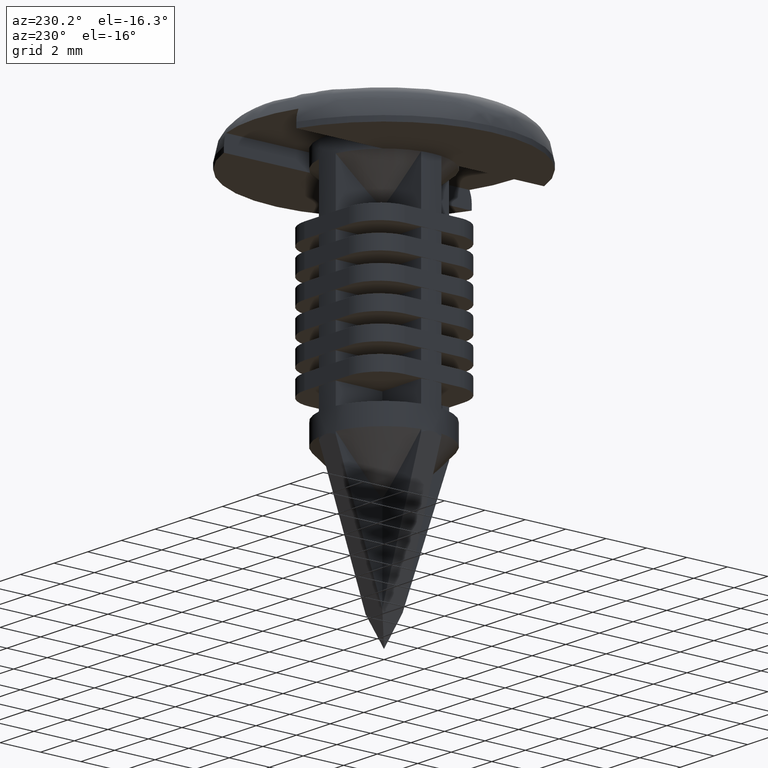
[diagram: clean part render]
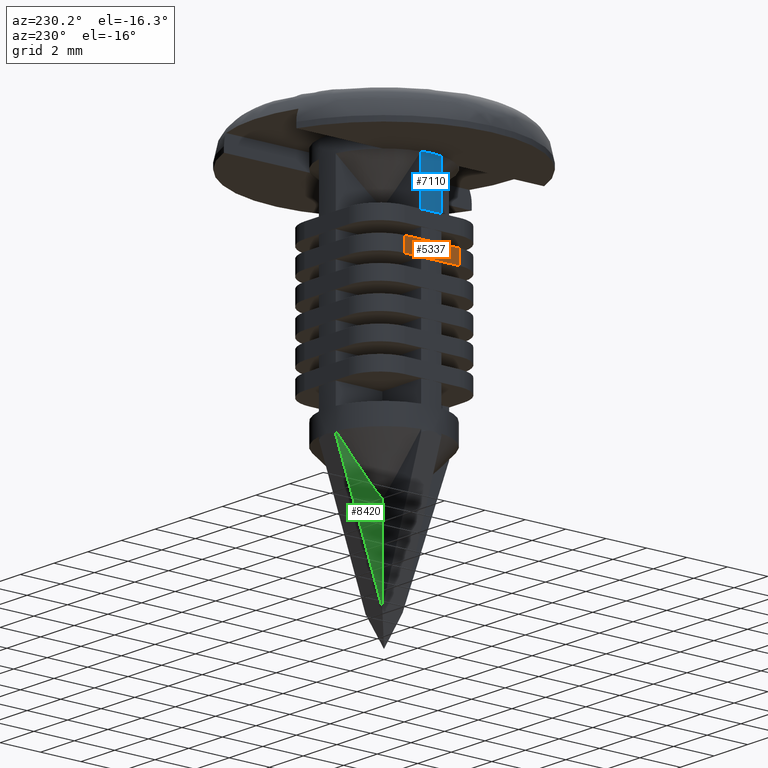
[diagram: same view with three faces highlighted in distinct colors, each labeled with its STEP entity id]
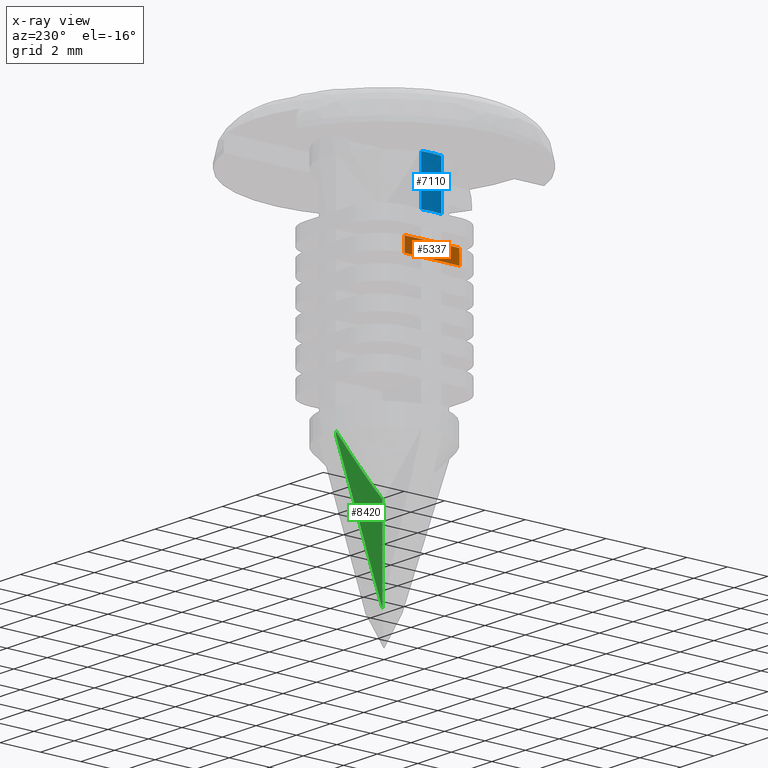
[diagram: x-ray of the same camera — body ghosted, the three highlighted faces saturated]
A machine part, auxiliary view with three faces highlighted in distinct colors.
The next image is the same camera in x-ray (body ghosted, the three faces saturated) — at least one of them is partly hidden behind the body in this view.
Their STEP definitions:

[orange] entity #5337 — the highlighted face is a freeform B-spline surface patch.
#4562=CARTESIAN_POINT('',(-2.849999427775925,7.850462E-017,-5.499998211860650));
#4563=VERTEX_POINT('',#4562);
#4577=CARTESIAN_POINT('',(-2.849999427775925,1.353538036346500,-5.499998211860650));
#4578=VERTEX_POINT('',#4577);
#4579=CARTESIAN_POINT('',(-2.849999427775925,7.850462E-017,-5.499998211860650));
#4580=CARTESIAN_POINT('',(-2.849999427775925,1.353538036346500,-5.499998211860650));
#4581=QUASI_UNIFORM_CURVE('',1,(#4579,#4580),.UNSPECIFIED.,.F.,.U.);
#4582=EDGE_CURVE('',#4563,#4578,#4581,.T.);
#4621=CARTESIAN_POINT('',(-2.849999427775925,1.353538036346500,-6.199995160102830));
#4622=VERTEX_POINT('',#4621);
#4636=CARTESIAN_POINT('',(-2.849999427775925,7.850462E-017,-6.199995160102830));
#4637=VERTEX_POINT('',#4636);
#4638=CARTESIAN_POINT('',(-2.849999427775925,7.850462E-017,-6.199995160102830));
#4639=CARTESIAN_POINT('',(-2.849999427775925,1.353538036346500,-6.199995160102830));
#4640=QUASI_UNIFORM_CURVE('',1,(#4638,#4639),.UNSPECIFIED.,.F.,.U.);
#4641=EDGE_CURVE('',#4637,#4622,#4640,.T.);
#4833=CARTESIAN_POINT('',(-2.849999427775925,1.353538036346500,-6.199995160102830));
#4834=CARTESIAN_POINT('',(-2.849999427775925,1.353538036346500,-5.499998211860650));
#4835=QUASI_UNIFORM_CURVE('',1,(#4833,#4834),.UNSPECIFIED.,.F.,.U.);
#4836=EDGE_CURVE('',#4622,#4578,#4835,.T.);
#4863=CARTESIAN_POINT('',(-2.849999427775925,-1.353538513183586,-5.499998211860650));
#4864=VERTEX_POINT('',#4863);
#4885=CARTESIAN_POINT('',(-2.849999427775925,-1.353538513183586,-6.199995160102830));
#4886=VERTEX_POINT('',#4885);
#4900=CARTESIAN_POINT('',(-2.849999427775925,-1.353538513183586,-6.199995160102830));
#4901=CARTESIAN_POINT('',(-2.849999427775925,-1.353538513183586,-5.499998211860650));
#4902=QUASI_UNIFORM_CURVE('',1,(#4900,#4901),.UNSPECIFIED.,.F.,.U.);
#4903=EDGE_CURVE('',#4886,#4864,#4902,.T.);
#4950=CARTESIAN_POINT('',(-2.849999427775925,-1.353538513183586,-5.499998211860650));
#4951=CARTESIAN_POINT('',(-2.849999427775925,7.850462E-017,-5.499998211860650));
#4952=QUASI_UNIFORM_CURVE('',1,(#4950,#4951),.UNSPECIFIED.,.F.,.U.);
#4953=EDGE_CURVE('',#4864,#4563,#4952,.T.);
#5115=CARTESIAN_POINT('',(-2.849999427775925,-1.353538513183586,-6.199995160102830));
#5116=CARTESIAN_POINT('',(-2.849999427775925,7.850462E-017,-6.199995160102830));
#5117=QUASI_UNIFORM_CURVE('',1,(#5115,#5116),.UNSPECIFIED.,.F.,.U.);
#5118=EDGE_CURVE('',#4886,#4637,#5117,.T.);
#5324=CARTESIAN_POINT('',(-2.849999427775925,-1.488756981585775,-5.465033248304986));
#5325=CARTESIAN_POINT('',(-2.849999427775925,-1.488756981585775,-6.234959873320078));
#5326=CARTESIAN_POINT('',(-2.849999427775925,1.488756577358140,-5.465033248304986));
#5327=CARTESIAN_POINT('',(-2.849999427775925,1.488756577358140,-6.234959873320078));
#5328=B_SPLINE_SURFACE_WITH_KNOTS('',1,1,((#5324,#5326),(#5325,#5327)),.UNSPECIFIED.,.F.,.F.,.U.,(2,2),(2,2),(0.041708195248246,0.958291506728530),(0.0,2.977513558943914),.UNSPECIFIED.);
#5329=ORIENTED_EDGE('',*,*,#4641,.T.);
#5330=ORIENTED_EDGE('',*,*,#4836,.T.);
#5331=ORIENTED_EDGE('',*,*,#4582,.F.);
#5332=ORIENTED_EDGE('',*,*,#4953,.F.);
#5333=ORIENTED_EDGE('',*,*,#4903,.F.);
#5334=ORIENTED_EDGE('',*,*,#5118,.T.);
#5335=EDGE_LOOP('',(#5329,#5330,#5331,#5332,#5333,#5334));
#5336=FACE_OUTER_BOUND('',#5335,.T.);
#5337=ADVANCED_FACE('',(#5336),#5328,.T.);

[blue] entity #7110 — the highlighted face is a freeform B-spline surface patch.
#5788=CARTESIAN_POINT('',(-2.849999427775920,7.850462E-017,-4.300001263618405));
#5789=VERTEX_POINT('',#5788);
#5823=CARTESIAN_POINT('',(-2.805797328013960,0.499998092651375,-4.300001263618405));
#5824=VERTEX_POINT('',#5823);
#5830=CARTESIAN_POINT('',(-2.849999427775920,7.850462E-017,-4.300001263618405));
#5831=CARTESIAN_POINT('',(-2.849999427814905,0.251952879405781,-4.300001263618405));
#5832=CARTESIAN_POINT('',(-2.805797328013959,0.499998092651375,-4.300001263618405));
#5840=(BOUNDED_CURVE()B_SPLINE_CURVE(2,(#5830,#5831,#5832),.UNSPECIFIED.,.F.,.U.)CURVE()GEOMETRIC_REPRESENTATION_ITEM()QUASI_UNIFORM_CURVE()RATIONAL_B_SPLINE_CURVE((1.0,0.996115075727729,1.0))REPRESENTATION_ITEM(''));
#5841=EDGE_CURVE('',#5789,#5824,#5840,.T.);
#5853=CARTESIAN_POINT('',(-2.805796988120425,-0.499999999999986,-4.300001263618405));
#5854=VERTEX_POINT('',#5853);
#5891=CARTESIAN_POINT('',(-2.805796988120425,-0.499999999999986,-4.300001263618405));
#5892=CARTESIAN_POINT('',(-2.849999427814904,-0.251953855674939,-4.300001263618405));
#5893=CARTESIAN_POINT('',(-2.849999427775920,7.850462E-017,-4.300001263618405));
#5901=(BOUNDED_CURVE()B_SPLINE_CURVE(2,(#5891,#5892,#5893),.UNSPECIFIED.,.F.,.U.)CURVE()GEOMETRIC_REPRESENTATION_ITEM()QUASI_UNIFORM_CURVE()RATIONAL_B_SPLINE_CURVE((1.0,0.996115045796214,1.0))REPRESENTATION_ITEM(''));
#5902=EDGE_CURVE('',#5854,#5789,#5901,.T.);
#6489=CARTESIAN_POINT('',(-2.805796988120425,-0.499999999999986,-1.999998211860590));
#6490=VERTEX_POINT('',#6489);
#6504=CARTESIAN_POINT('',(-2.805797328013960,0.499998092651375,-1.999998211860590));
#6505=VERTEX_POINT('',#6504);
#6506=CARTESIAN_POINT('',(-2.805796988120425,-0.499999999999986,-1.999998211860590));
#6507=CARTESIAN_POINT('',(-2.894898056044692,-0.000000983959185,-1.999998211860590));
#6508=CARTESIAN_POINT('',(-2.805797328013959,0.499998092651373,-1.999998211860590));
#6516=(BOUNDED_CURVE()B_SPLINE_CURVE(2,(#6506,#6507,#6508),.UNSPECIFIED.,.F.,.U.)CURVE()GEOMETRIC_REPRESENTATION_ITEM()QUASI_UNIFORM_CURVE()RATIONAL_B_SPLINE_CURVE((1.0,0.984490428553710,1.0))REPRESENTATION_ITEM(''));
#6517=EDGE_CURVE('',#6490,#6505,#6516,.T.);
#7077=CARTESIAN_POINT('',(-2.805797328013960,0.499998092651375,-4.300001263618405));
#7078=CARTESIAN_POINT('',(-2.805797328013960,0.499998092651375,-1.999998211860590));
#7079=QUASI_UNIFORM_CURVE('',1,(#7077,#7078),.UNSPECIFIED.,.F.,.U.);
#7080=EDGE_CURVE('',#5824,#6505,#7079,.T.);
#7085=CARTESIAN_POINT('',(-2.796617232788576,-0.549025310723690,-4.357501339912350));
#7086=CARTESIAN_POINT('',(-2.796617232788576,-0.549025310723690,-1.941060633659295));
#7087=CARTESIAN_POINT('',(-2.904406792092262,0.000031596445173,-4.357501339912351));
#7088=CARTESIAN_POINT('',(-2.904406792092262,0.000031596445173,-1.941060633659295));
#7089=CARTESIAN_POINT('',(-2.796605286659365,0.549086158243106,-4.357501339912353));
#7090=CARTESIAN_POINT('',(-2.796605286659365,0.549086158243106,-1.941060633659295));
#7098=(BOUNDED_SURFACE()B_SPLINE_SURFACE(1,2,((#7085,#7087,#7089),(#7086,#7088,#7090)),.UNSPECIFIED.,.F.,.F.,.U.)B_SPLINE_SURFACE_WITH_KNOTS((2,2),(3,3),(0.0,2.416440706253056),(0.058001109294966,0.911443724400923),.UNSPECIFIED.)GEOMETRIC_REPRESENTATION_ITEM()RATIONAL_B_SPLINE_SURFACE(((0.997199315452988,0.977863031803450,0.995862607657924),(0.997199315452988,0.977863031803450,0.995862607657924)))REPRESENTATION_ITEM('')SURFACE());
#7099=ORIENTED_EDGE('',*,*,#5841,.T.);
#7100=ORIENTED_EDGE('',*,*,#7080,.T.);
#7101=ORIENTED_EDGE('',*,*,#6517,.F.);
#7102=CARTESIAN_POINT('',(-2.805796988120425,-0.499999999999986,-4.300001263618405));
#7103=CARTESIAN_POINT('',(-2.805796988120425,-0.499999999999986,-1.999998211860590));
#7104=QUASI_UNIFORM_CURVE('',1,(#7102,#7103),.UNSPECIFIED.,.F.,.U.);
#7105=EDGE_CURVE('',#5854,#6490,#7104,.T.);
#7106=ORIENTED_EDGE('',*,*,#7105,.F.);
#7107=ORIENTED_EDGE('',*,*,#5902,.T.);
#7108=EDGE_LOOP('',(#7099,#7100,#7101,#7106,#7107));
#7109=FACE_OUTER_BOUND('',#7108,.T.);
#7110=ADVANCED_FACE('',(#7109),#7098,.F.);

[green] entity #8420 — the highlighted face is a freeform B-spline surface patch.
#182=CARTESIAN_POINT('',(-0.499999999999972,2.805796988120370,-12.999998211860600));
#183=VERTEX_POINT('',#182);
#197=CARTESIAN_POINT('',(-0.499999999999972,2.805796988120380,-13.124079215736259));
#198=VERTEX_POINT('',#197);
#199=CARTESIAN_POINT('',(-0.499999999999972,2.805796988120380,-13.124079215736259));
#200=CARTESIAN_POINT('',(-0.499999999999972,2.805796988120370,-12.999998211860600));
#201=QUASI_UNIFORM_CURVE('',1,(#199,#200),.UNSPECIFIED.,.F.,.U.);
#202=EDGE_CURVE('',#198,#183,#201,.T.);
#995=CARTESIAN_POINT('',(-0.499999999999972,0.499998092651229,-15.255678507562250));
#996=VERTEX_POINT('',#995);
#997=CARTESIAN_POINT('',(-0.499999999999972,2.805796988120370,-12.999998211860600));
#998=CARTESIAN_POINT('',(-0.499999999999972,2.619091063338950,-13.193482820140421));
#999=CARTESIAN_POINT('',(-0.499999999999972,2.432107537235343,-13.386696332742609));
#1000=CARTESIAN_POINT('',(-0.499999999999972,2.057044928398581,-13.772054202620140));
#1001=CARTESIAN_POINT('',(-0.499999999999972,1.869003771987698,-13.964235597406530));
#1002=CARTESIAN_POINT('',(-0.499999999999972,1.490433726448122,-14.346168954793770));
#1003=CARTESIAN_POINT('',(-0.499999999999972,1.300131729082868,-14.536142491902520));
#1004=CARTESIAN_POINT('',(-0.499999999999972,1.008912017963454,-14.815471226658000));
#1005=CARTESIAN_POINT('',(-0.499999999999972,0.910833286287842,-14.907672457085880));
#1006=CARTESIAN_POINT('',(-0.499999999999972,0.760370526576812,-15.042469515418849));
#1007=CARTESIAN_POINT('',(-0.499999999999972,0.709684576042976,-15.086767756889699));
#1008=CARTESIAN_POINT('',(-0.499999999999972,0.606525101671033,-15.173232349278690));
#1009=CARTESIAN_POINT('',(-0.499999999999972,0.554053506102686,-15.215443858161660));
#1010=CARTESIAN_POINT('',(-0.499999999999972,0.499998092651229,-15.255678507562250));
#1011=B_SPLINE_CURVE_WITH_KNOTS('',3,(#997,#998,#999,#1000,#1001,#1002,#1003,#1004,#1005,#1006,#1007,#1008,#1009,#1010),.UNSPECIFIED.,.F.,.U.,(4,2,2,2,2,2,4),(0.000000483418939,0.250000000000000,0.500000000000001,0.750000000000001,0.875000000000001,0.937500000000000,1.0),.UNSPECIFIED.);
#1012=EDGE_CURVE('',#183,#996,#1011,.T.);
#1163=CARTESIAN_POINT('',(-0.499999999999993,0.500000000000000,-19.596491699011601));
#1164=VERTEX_POINT('',#1163);
#1165=CARTESIAN_POINT('',(-0.499999999999972,2.805796988120380,-13.124079215736259));
#1166=CARTESIAN_POINT('',(-0.499999999999993,0.500000000000000,-19.596491699011601));
#1167=QUASI_UNIFORM_CURVE('',1,(#1165,#1166),.UNSPECIFIED.,.F.,.U.);
#1168=EDGE_CURVE('',#198,#1164,#1167,.T.);
#8405=CARTESIAN_POINT('',(-0.499999999999972,0.384823442291631,-12.670503298250990));
#8406=CARTESIAN_POINT('',(-0.499999999999972,0.384823442291631,-19.925985727962502));
#8407=CARTESIAN_POINT('',(-0.499999999999972,2.920971700326324,-12.670503298250990));
#8408=CARTESIAN_POINT('',(-0.499999999999972,2.920971700326324,-19.925985727962502));
#8409=B_SPLINE_SURFACE_WITH_KNOTS('',1,1,((#8405,#8407),(#8406,#8408)),.UNSPECIFIED.,.F.,.F.,.U.,(2,2),(2,2),(0.0,7.255482429711512),(0.0,2.536148258034694),.UNSPECIFIED.);
#8410=ORIENTED_EDGE('',*,*,#1012,.T.);
#8411=CARTESIAN_POINT('',(-0.499999999999993,0.500000000000000,-19.596491699011601));
#8412=CARTESIAN_POINT('',(-0.499999999999972,0.499998092651229,-15.255678507562250));
#8413=QUASI_UNIFORM_CURVE('',1,(#8411,#8412),.UNSPECIFIED.,.F.,.U.);
#8414=EDGE_CURVE('',#1164,#996,#8413,.T.);
#8415=ORIENTED_EDGE('',*,*,#8414,.F.);
#8416=ORIENTED_EDGE('',*,*,#1168,.F.);
#8417=ORIENTED_EDGE('',*,*,#202,.T.);
#8418=EDGE_LOOP('',(#8410,#8415,#8416,#8417));
#8419=FACE_OUTER_BOUND('',#8418,.T.);
#8420=ADVANCED_FACE('',(#8419),#8409,.T.);